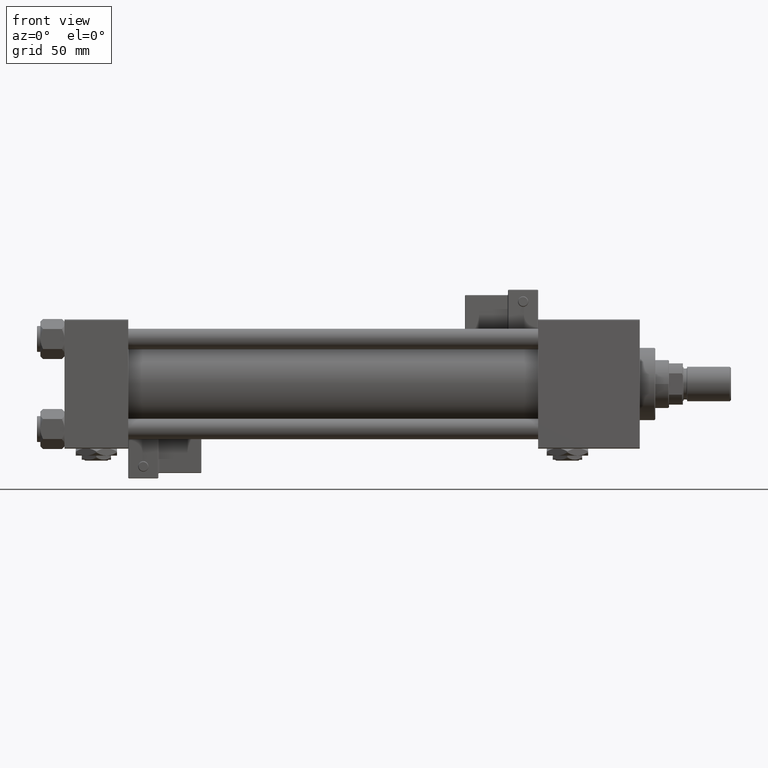
[diagram: clean part render]
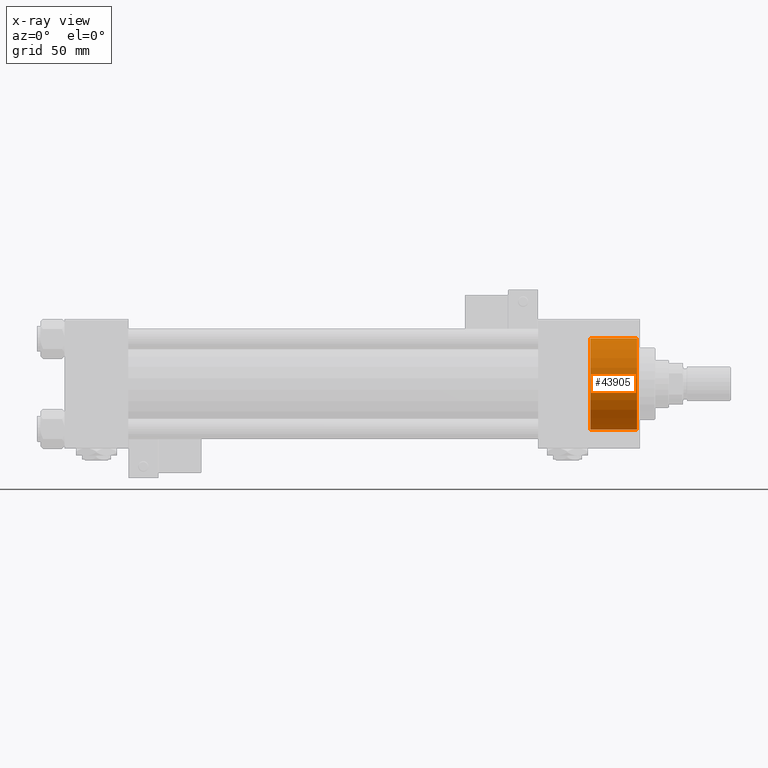
[diagram: x-ray — body ghosted, one internal face saturated and labeled with its STEP entity id]
A machine part, front view, then the same camera in x-ray: the body is ghosted and one INTERNAL B-rep face — a face not visible from any outside direction — is saturated and labeled: STEP entity #43905.
In plain terms, the highlighted cylindrical surface (partial cylindrical patch) has radius 26.5 mm, axis along (1, 0, 0).
Its self-contained STEP definition (entity closure, byte-faithful):
#656 = DIRECTION ( 'NONE',  ( 0.000000000000000000, 0.000000000000000000, 1.000000000000000000 ) ) ;
#2346 = VERTEX_POINT ( 'NONE', #53716 ) ;
#2447 = EDGE_CURVE ( 'NONE', #25931, #2346, #6000, .T. ) ;
#3368 = VERTEX_POINT ( 'NONE', #4508 ) ;
#4508 = CARTESIAN_POINT ( 'NONE',  ( 305.2999999999999545, 0.000000000000000000, -26.50000000000000355 ) ) ;
#4828 = CARTESIAN_POINT ( 'NONE',  ( 332.5000000000000000, 0.000000000000000000, 0.000000000000000000 ) ) ;
#4934 = DIRECTION ( 'NONE',  ( 1.000000000000000000, 0.000000000000000000, 0.000000000000000000 ) ) ;
#5137 = VERTEX_POINT ( 'NONE', #46848 ) ;
#5293 = CIRCLE ( 'NONE', #48747, 26.50000000000000355 ) ;
#6000 = CIRCLE ( 'NONE', #17540, 26.50000000000000355 ) ;
#8183 = VECTOR ( 'NONE', #23421, 1000.000000000000000 ) ;
#11218 = CARTESIAN_POINT ( 'NONE',  ( 305.2999999999999545, 0.000000000000000000, 0.000000000000000000 ) ) ;
#13273 = CARTESIAN_POINT ( 'NONE',  ( 305.2999999999999545, 0.000000000000000000, 0.000000000000000000 ) ) ;
#14095 = ORIENTED_EDGE ( 'NONE', *, *, #2447, .T. ) ;
#17540 = AXIS2_PLACEMENT_3D ( 'NONE', #4828, #21776, #656 ) ;
#18915 = CARTESIAN_POINT ( 'NONE',  ( 332.5000000000000000, 3.245314017740486554E-15, 26.50000000000000355 ) ) ;
#20369 = CYLINDRICAL_SURFACE ( 'NONE', #45298, 26.50000000000000355 ) ;
#21776 = DIRECTION ( 'NONE',  ( 1.000000000000000000, 0.000000000000000000, 0.000000000000000000 ) ) ;
#21880 = DIRECTION ( 'NONE',  ( 0.000000000000000000, 0.000000000000000000, -1.000000000000000000 ) ) ;
#21905 = EDGE_CURVE ( 'NONE', #5137, #25931, #51278, .T. ) ;
#23421 = DIRECTION ( 'NONE',  ( 1.000000000000000000, -0.000000000000000000, -0.000000000000000000 ) ) ;
#24642 = ORIENTED_EDGE ( 'NONE', *, *, #50747, .F. ) ;
#25931 = VERTEX_POINT ( 'NONE', #18915 ) ;
#29905 = CARTESIAN_POINT ( 'NONE',  ( 305.2999999999999545, 3.245314017740486554E-15, 26.50000000000000355 ) ) ;
#30157 = ORIENTED_EDGE ( 'NONE', *, *, #21905, .T. ) ;
#37589 = DIRECTION ( 'NONE',  ( 1.000000000000000000, -0.000000000000000000, -0.000000000000000000 ) ) ;
#37713 = VECTOR ( 'NONE', #42966, 1000.000000000000000 ) ;
#39943 = ORIENTED_EDGE ( 'NONE', *, *, #44556, .F. ) ;
#40640 = CARTESIAN_POINT ( 'NONE',  ( 305.2999999999999545, 0.000000000000000000, -26.50000000000000355 ) ) ;
#41210 = FACE_OUTER_BOUND ( 'NONE', #50813, .T. ) ;
#41750 = DIRECTION ( 'NONE',  ( 0.000000000000000000, 0.000000000000000000, -1.000000000000000000 ) ) ;
#42966 = DIRECTION ( 'NONE',  ( 1.000000000000000000, -0.000000000000000000, -0.000000000000000000 ) ) ;
#43905 = ADVANCED_FACE ( 'NONE', ( #41210 ), #20369, .F. ) ;
#44556 = EDGE_CURVE ( 'NONE', #5137, #3368, #5293, .T. ) ;
#45298 = AXIS2_PLACEMENT_3D ( 'NONE', #11218, #37589, #41750 ) ;
#45348 = LINE ( 'NONE', #40640, #8183 ) ;
#46848 = CARTESIAN_POINT ( 'NONE',  ( 305.2999999999999545, 3.245314017740486554E-15, 26.50000000000000355 ) ) ;
#48747 = AXIS2_PLACEMENT_3D ( 'NONE', #13273, #4934, #21880 ) ;
#50747 = EDGE_CURVE ( 'NONE', #3368, #2346, #45348, .T. ) ;
#50813 = EDGE_LOOP ( 'NONE', ( #39943, #30157, #14095, #24642 ) ) ;
#51278 = LINE ( 'NONE', #29905, #37713 ) ;
#53716 = CARTESIAN_POINT ( 'NONE',  ( 332.5000000000000000, 0.000000000000000000, -26.50000000000000355 ) ) ;